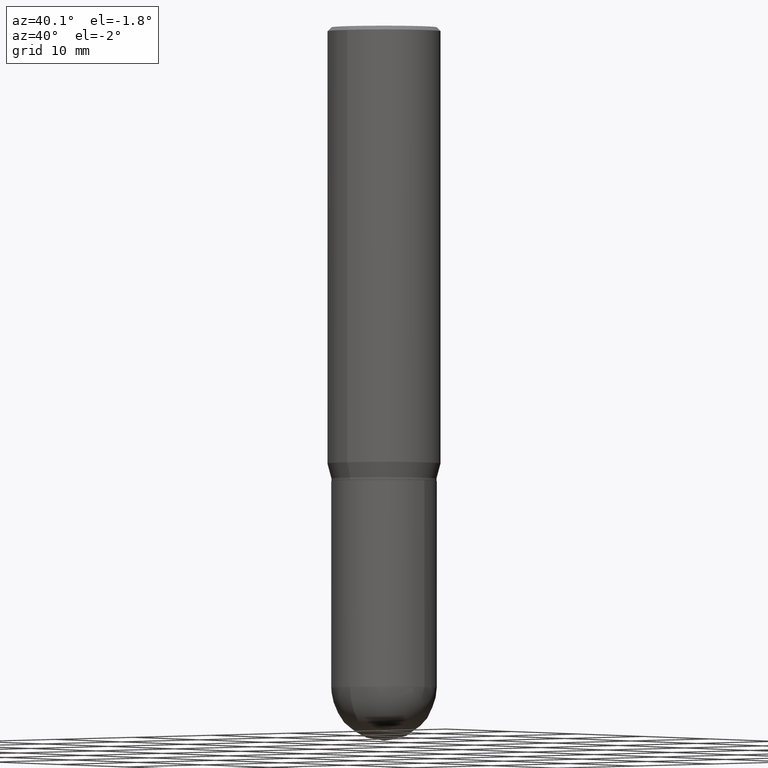
[diagram: clean part render]
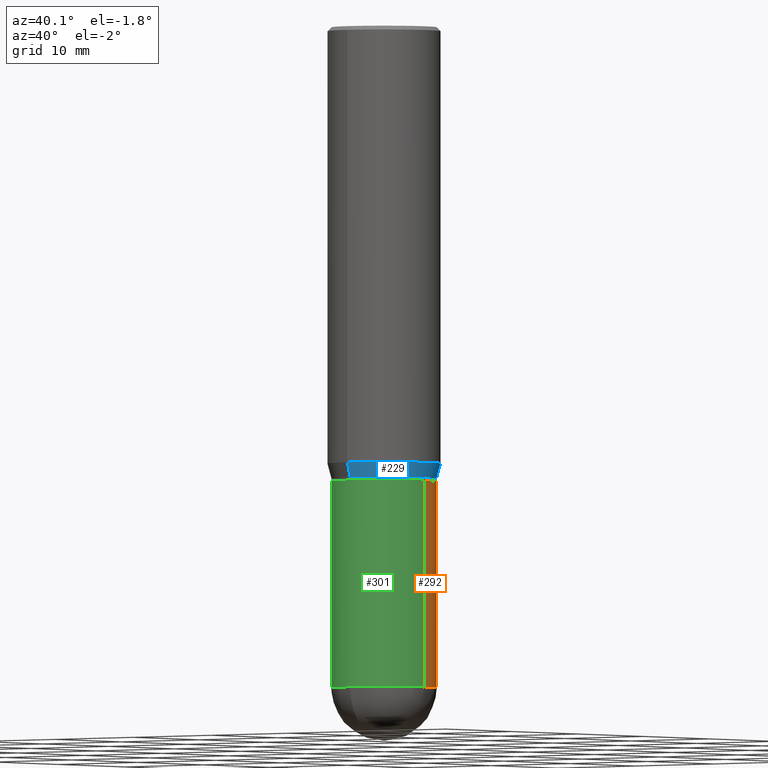
[diagram: same view with three faces highlighted in distinct colors, each labeled with its STEP entity id]
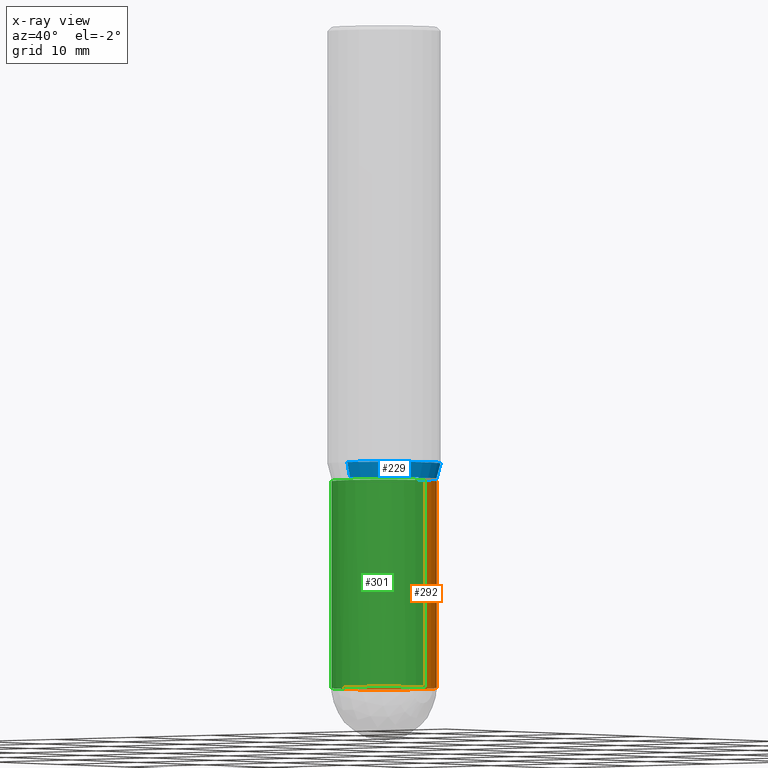
[diagram: x-ray of the same camera — body ghosted, the three highlighted faces saturated]
A machine part, auxiliary view with three faces highlighted in distinct colors.
The next image is the same camera in x-ray (body ghosted, the three faces saturated) — at least one of them is partly hidden behind the body in this view.
Their STEP definitions:

[orange] entity #292 — the highlighted cylindrical surface (partial cylindrical patch) has radius 5.1587 mm, axis along (-0, 0, 1).
#8 = CARTESIAN_POINT ( 'NONE',  ( 0.2031000000000000028, -1.418239719838080775E-15, 9.903515031641546145E-30 ) ) ;
#12 = CIRCLE ( 'NONE', #230, 0.2031000000000000583 ) ;
#36 = CARTESIAN_POINT ( 'NONE',  ( 6.228364502472924746E-29, -8.892453821899607499E-15, -2.546899999999999942 ) ) ;
#46 = DIRECTION ( 'NONE',  ( -2.445468806185136877E-29, 3.491481338843145188E-15, 1.000000000000000000 ) ) ;
#47 = VERTEX_POINT ( 'NONE', #476 ) ;
#52 = CARTESIAN_POINT ( 'NONE',  ( -0.2031000000000000028, 1.443112296328763497E-15, -9.990357168307714203E-30 ) ) ;
#82 = VERTEX_POINT ( 'NONE', #307 ) ;
#89 = EDGE_CURVE ( 'NONE', #47, #118, #176, .T. ) ;
#92 = CARTESIAN_POINT ( 'NONE',  ( 1.418239719838142898E-15, 0.2030999999999910932, -2.546900000000000830 ) ) ;
#97 = CYLINDRICAL_SURFACE ( 'NONE', #492, 0.2031000000000000028 ) ;
#98 = EDGE_CURVE ( 'NONE', #273, #118, #398, .T. ) ;
#101 = CARTESIAN_POINT ( 'NONE',  ( 0.000000000000000000, 0.000000000000000000, 0.000000000000000000 ) ) ;
#114 = ORIENTED_EDGE ( 'NONE', *, *, #449, .T. ) ;
#118 = VERTEX_POINT ( 'NONE', #248 ) ;
#126 = CARTESIAN_POINT ( 'NONE',  ( 4.279570410823988484E-29, -6.110092342975504671E-15, -1.750000000000000000 ) ) ;
#128 = LINE ( 'NONE', #8, #236 ) ;
#164 = EDGE_CURVE ( 'NONE', #82, #47, #128, .T. ) ;
#171 = DIRECTION ( 'NONE',  ( 1.000000000000000000, -6.982962677686269866E-15, 0.000000000000000000 ) ) ;
#176 = CIRCLE ( 'NONE', #331, 0.2031000000000000028 ) ;
#178 = DIRECTION ( 'NONE',  ( 1.000000000000000000, -6.982962677686266711E-15, 4.876176775795935793E-29 ) ) ;
#187 = EDGE_CURVE ( 'NONE', #279, #273, #12, .T. ) ;
#203 = ORIENTED_EDGE ( 'NONE', *, *, #164, .F. ) ;
#214 = VECTOR ( 'NONE', #46, 39.37007874015748143 ) ;
#227 = DIRECTION ( 'NONE',  ( 1.000000000000000000, -6.982962677686262766E-15, 0.000000000000000000 ) ) ;
#230 = AXIS2_PLACEMENT_3D ( 'NONE', #394, #365, #404 ) ;
#236 = VECTOR ( 'NONE', #326, 39.37007874015748143 ) ;
#248 = CARTESIAN_POINT ( 'NONE',  ( -0.2031000000000000028, -6.058160786108792588E-15, -1.750000000000000000 ) ) ;
#267 = EDGE_LOOP ( 'NONE', ( #468, #465, #419, #203, #114 ) ) ;
#270 = DIRECTION ( 'NONE',  ( -2.445468806185136597E-29, 3.491481338843145583E-15, 1.000000000000000000 ) ) ;
#273 = VERTEX_POINT ( 'NONE', #494 ) ;
#279 = VERTEX_POINT ( 'NONE', #92 ) ;
#292 = ADVANCED_FACE ( 'NONE', ( #337 ), #97, .T. ) ;
#307 = CARTESIAN_POINT ( 'NONE',  ( 0.2031000000000000583, -8.919512802275635677E-15, -2.546899999999999942 ) ) ;
#325 = CIRCLE ( 'NONE', #360, 0.2031000000000000583 ) ;
#326 = DIRECTION ( 'NONE',  ( -2.445468806185136877E-29, 3.491481338843145188E-15, 1.000000000000000000 ) ) ;
#331 = AXIS2_PLACEMENT_3D ( 'NONE', #126, #488, #171 ) ;
#332 = DIRECTION ( 'NONE',  ( -2.445468806185136597E-29, 3.491481338843145583E-15, 1.000000000000000000 ) ) ;
#337 = FACE_OUTER_BOUND ( 'NONE', #267, .T. ) ;
#360 = AXIS2_PLACEMENT_3D ( 'NONE', #36, #270, #227 ) ;
#365 = DIRECTION ( 'NONE',  ( -2.445468806185136597E-29, 3.491481338843145583E-15, 1.000000000000000000 ) ) ;
#394 = CARTESIAN_POINT ( 'NONE',  ( 6.228364502472924746E-29, -8.892453821899607499E-15, -2.546899999999999942 ) ) ;
#398 = LINE ( 'NONE', #52, #214 ) ;
#404 = DIRECTION ( 'NONE',  ( 1.000000000000000000, -6.982962677686262766E-15, 0.000000000000000000 ) ) ;
#419 = ORIENTED_EDGE ( 'NONE', *, *, #89, .F. ) ;
#449 = EDGE_CURVE ( 'NONE', #82, #279, #325, .T. ) ;
#465 = ORIENTED_EDGE ( 'NONE', *, *, #98, .T. ) ;
#468 = ORIENTED_EDGE ( 'NONE', *, *, #187, .T. ) ;
#476 = CARTESIAN_POINT ( 'NONE',  ( 0.2031000000000000028, -7.528332062813585446E-15, -1.750000000000000000 ) ) ;
#488 = DIRECTION ( 'NONE',  ( -2.445468806185136597E-29, 3.491481338843145583E-15, 1.000000000000000000 ) ) ;
#492 = AXIS2_PLACEMENT_3D ( 'NONE', #101, #332, #178 ) ;
#494 = CARTESIAN_POINT ( 'NONE',  ( -0.2031000000000000583, -6.058160786108791010E-15, -2.546899999999999942 ) ) ;

[blue] entity #229 — the highlighted conical surface has half-angle 15 deg.
#19 = CARTESIAN_POINT ( 'NONE',  ( -1.418239719838037782E-15, -0.2031000000000060257, -1.739999999999999103 ) ) ;
#41 = CARTESIAN_POINT ( 'NONE',  ( 1.498712265402032742E-15, 0.2030999999999938688, -1.740000000000000879 ) ) ;
#51 = EDGE_LOOP ( 'NONE', ( #472, #385, #234, #434 ) ) ;
#53 = CIRCLE ( 'NONE', #231, 0.2030999999999999472 ) ;
#56 = CARTESIAN_POINT ( 'NONE',  ( -1.418239719838037782E-15, -0.2031000000000060257, -1.739999999999999103 ) ) ;
#72 = DIRECTION ( 'NONE',  ( -2.445218819430257669E-29, 3.491839334104495039E-15, 1.000000000000000000 ) ) ;
#115 = EDGE_CURVE ( 'NONE', #387, #166, #244, .T. ) ;
#139 = VECTOR ( 'NONE', #148, 39.37007874015748143 ) ;
#148 = DIRECTION ( 'NONE',  ( 1.839019923739593216E-15, 0.2588190451025239591, 0.9659258262890674240 ) ) ;
#159 = VERTEX_POINT ( 'NONE', #41 ) ;
#163 = FACE_OUTER_BOUND ( 'NONE', #51, .T. ) ;
#166 = VERTEX_POINT ( 'NONE', #447 ) ;
#201 = CARTESIAN_POINT ( 'NONE',  ( 4.111863840197258972E-29, -5.871853995066253491E-15, -1.681593404861546848 ) ) ;
#213 = DIRECTION ( 'NONE',  ( -6.982962677686265133E-15, -1.000000000000000000, 3.746534391310989557E-15 ) ) ;
#229 = ADVANCED_FACE ( 'NONE', ( #163 ), #324, .T. ) ;
#231 = AXIS2_PLACEMENT_3D ( 'NONE', #313, #72, #378 ) ;
#234 = ORIENTED_EDGE ( 'NONE', *, *, #115, .F. ) ;
#244 = CIRCLE ( 'NONE', #388, 0.2187500000000000000 ) ;
#252 = CARTESIAN_POINT ( 'NONE',  ( -1.527523085743829428E-15, -0.2187500000000058287, -1.681593404861545960 ) ) ;
#282 = EDGE_CURVE ( 'NONE', #400, #387, #377, .T. ) ;
#290 = CARTESIAN_POINT ( 'NONE',  ( 4.254680745808648669E-29, -6.075800441341822188E-15, -1.739999999999999991 ) ) ;
#297 = AXIS2_PLACEMENT_3D ( 'NONE', #290, #444, #482 ) ;
#302 = DIRECTION ( 'NONE',  ( -1.807323732225323040E-15, -0.2588190451025171868, 0.9659258262890693114 ) ) ;
#311 = EDGE_CURVE ( 'NONE', #159, #166, #497, .T. ) ;
#313 = CARTESIAN_POINT ( 'NONE',  ( 4.254680745808648669E-29, -6.075800441341822188E-15, -1.739999999999999991 ) ) ;
#324 = CONICAL_SURFACE ( 'NONE', #297, 0.2030999999999999472, 0.2617993877991492413 ) ;
#329 = CARTESIAN_POINT ( 'NONE',  ( 1.443112296328805307E-15, 0.2030999999999938688, -1.740000000000000879 ) ) ;
#362 = DIRECTION ( 'NONE',  ( -2.445218819430257669E-29, 3.491839334104495039E-15, 1.000000000000000000 ) ) ;
#377 = LINE ( 'NONE', #19, #379 ) ;
#378 = DIRECTION ( 'NONE',  ( -6.982962677686266711E-15, -1.000000000000000000, 4.035225987687243463E-15 ) ) ;
#379 = VECTOR ( 'NONE', #302, 39.37007874015748854 ) ;
#385 = ORIENTED_EDGE ( 'NONE', *, *, #311, .T. ) ;
#387 = VERTEX_POINT ( 'NONE', #252 ) ;
#388 = AXIS2_PLACEMENT_3D ( 'NONE', #201, #362, #213 ) ;
#400 = VERTEX_POINT ( 'NONE', #56 ) ;
#423 = EDGE_CURVE ( 'NONE', #400, #159, #53, .T. ) ;
#434 = ORIENTED_EDGE ( 'NONE', *, *, #282, .F. ) ;
#444 = DIRECTION ( 'NONE',  ( -2.445218819430257669E-29, 3.491839334104495039E-15, 1.000000000000000000 ) ) ;
#447 = CARTESIAN_POINT ( 'NONE',  ( 1.554312234475260177E-15, 0.2187499999999941436, -1.681593404861547736 ) ) ;
#472 = ORIENTED_EDGE ( 'NONE', *, *, #423, .T. ) ;
#482 = DIRECTION ( 'NONE',  ( -6.982962677686266711E-15, -1.000000000000000000, 4.035225987687243463E-15 ) ) ;
#497 = LINE ( 'NONE', #329, #139 ) ;

[green] entity #301 — the highlighted cylindrical surface (partial cylindrical patch) has radius 5.1587 mm, axis along (-0, 0, 1).
#5 = ORIENTED_EDGE ( 'NONE', *, *, #122, .F. ) ;
#8 = CARTESIAN_POINT ( 'NONE',  ( 0.2031000000000000028, -1.418239719838080775E-15, 9.903515031641546145E-30 ) ) ;
#20 = CIRCLE ( 'NONE', #124, 0.2031000000000000028 ) ;
#30 = DIRECTION ( 'NONE',  ( 1.000000000000000000, -6.982962677686262766E-15, 0.000000000000000000 ) ) ;
#35 = DIRECTION ( 'NONE',  ( -2.445468806185136597E-29, 3.491481338843145583E-15, 1.000000000000000000 ) ) ;
#46 = DIRECTION ( 'NONE',  ( -2.445468806185136877E-29, 3.491481338843145188E-15, 1.000000000000000000 ) ) ;
#47 = VERTEX_POINT ( 'NONE', #476 ) ;
#50 = DIRECTION ( 'NONE',  ( -2.445468806185136597E-29, 3.491481338843145583E-15, 1.000000000000000000 ) ) ;
#52 = CARTESIAN_POINT ( 'NONE',  ( -0.2031000000000000028, 1.443112296328763497E-15, -9.990357168307714203E-30 ) ) ;
#58 = EDGE_CURVE ( 'NONE', #273, #340, #358, .T. ) ;
#82 = VERTEX_POINT ( 'NONE', #307 ) ;
#98 = EDGE_CURVE ( 'NONE', #273, #118, #398, .T. ) ;
#118 = VERTEX_POINT ( 'NONE', #248 ) ;
#122 = EDGE_CURVE ( 'NONE', #118, #47, #20, .T. ) ;
#124 = AXIS2_PLACEMENT_3D ( 'NONE', #161, #50, #251 ) ;
#128 = LINE ( 'NONE', #8, #236 ) ;
#134 = DIRECTION ( 'NONE',  ( 1.000000000000000000, -6.982962677686262766E-15, 0.000000000000000000 ) ) ;
#149 = ORIENTED_EDGE ( 'NONE', *, *, #164, .T. ) ;
#151 = EDGE_CURVE ( 'NONE', #340, #82, #508, .T. ) ;
#161 = CARTESIAN_POINT ( 'NONE',  ( 4.279570410823988484E-29, -6.110092342975504671E-15, -1.750000000000000000 ) ) ;
#164 = EDGE_CURVE ( 'NONE', #82, #47, #128, .T. ) ;
#214 = VECTOR ( 'NONE', #46, 39.37007874015748143 ) ;
#218 = FACE_OUTER_BOUND ( 'NONE', #443, .T. ) ;
#226 = CARTESIAN_POINT ( 'NONE',  ( -1.443112296328700980E-15, -0.2031000000000088845, -2.546899999999999498 ) ) ;
#236 = VECTOR ( 'NONE', #326, 39.37007874015748143 ) ;
#248 = CARTESIAN_POINT ( 'NONE',  ( -0.2031000000000000028, -6.058160786108792588E-15, -1.750000000000000000 ) ) ;
#251 = DIRECTION ( 'NONE',  ( 1.000000000000000000, -6.982962677686269866E-15, 0.000000000000000000 ) ) ;
#263 = DIRECTION ( 'NONE',  ( 1.000000000000000000, -6.982962677686266711E-15, 4.876176775795935793E-29 ) ) ;
#273 = VERTEX_POINT ( 'NONE', #494 ) ;
#294 = DIRECTION ( 'NONE',  ( -2.445468806185136597E-29, 3.491481338843145583E-15, 1.000000000000000000 ) ) ;
#301 = ADVANCED_FACE ( 'NONE', ( #218 ), #334, .T. ) ;
#307 = CARTESIAN_POINT ( 'NONE',  ( 0.2031000000000000583, -8.919512802275635677E-15, -2.546899999999999942 ) ) ;
#326 = DIRECTION ( 'NONE',  ( -2.445468806185136877E-29, 3.491481338843145188E-15, 1.000000000000000000 ) ) ;
#334 = CYLINDRICAL_SURFACE ( 'NONE', #339, 0.2031000000000000028 ) ;
#339 = AXIS2_PLACEMENT_3D ( 'NONE', #495, #457, #263 ) ;
#340 = VERTEX_POINT ( 'NONE', #226 ) ;
#358 = CIRCLE ( 'NONE', #368, 0.2031000000000000583 ) ;
#363 = ORIENTED_EDGE ( 'NONE', *, *, #58, .T. ) ;
#368 = AXIS2_PLACEMENT_3D ( 'NONE', #380, #35, #30 ) ;
#380 = CARTESIAN_POINT ( 'NONE',  ( 6.228364502472924746E-29, -8.892453821899607499E-15, -2.546899999999999942 ) ) ;
#398 = LINE ( 'NONE', #52, #214 ) ;
#420 = AXIS2_PLACEMENT_3D ( 'NONE', #437, #294, #134 ) ;
#428 = ORIENTED_EDGE ( 'NONE', *, *, #151, .T. ) ;
#437 = CARTESIAN_POINT ( 'NONE',  ( 6.228364502472924746E-29, -8.892453821899607499E-15, -2.546899999999999942 ) ) ;
#443 = EDGE_LOOP ( 'NONE', ( #483, #363, #428, #149, #5 ) ) ;
#457 = DIRECTION ( 'NONE',  ( -2.445468806185136597E-29, 3.491481338843145583E-15, 1.000000000000000000 ) ) ;
#476 = CARTESIAN_POINT ( 'NONE',  ( 0.2031000000000000028, -7.528332062813585446E-15, -1.750000000000000000 ) ) ;
#483 = ORIENTED_EDGE ( 'NONE', *, *, #98, .F. ) ;
#494 = CARTESIAN_POINT ( 'NONE',  ( -0.2031000000000000583, -6.058160786108791010E-15, -2.546899999999999942 ) ) ;
#495 = CARTESIAN_POINT ( 'NONE',  ( 0.000000000000000000, 0.000000000000000000, 0.000000000000000000 ) ) ;
#508 = CIRCLE ( 'NONE', #420, 0.2031000000000000583 ) ;